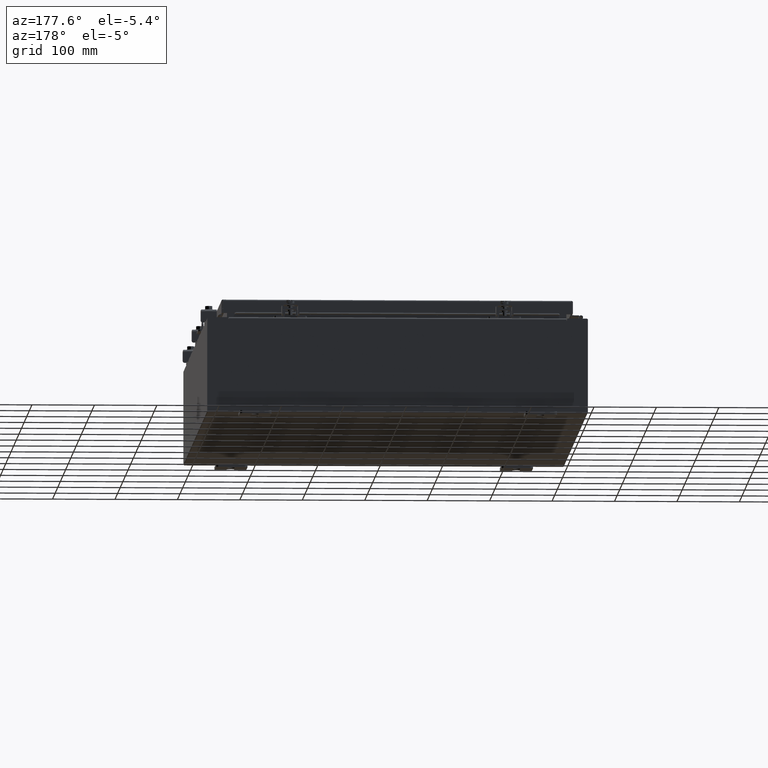
[diagram: clean part render]
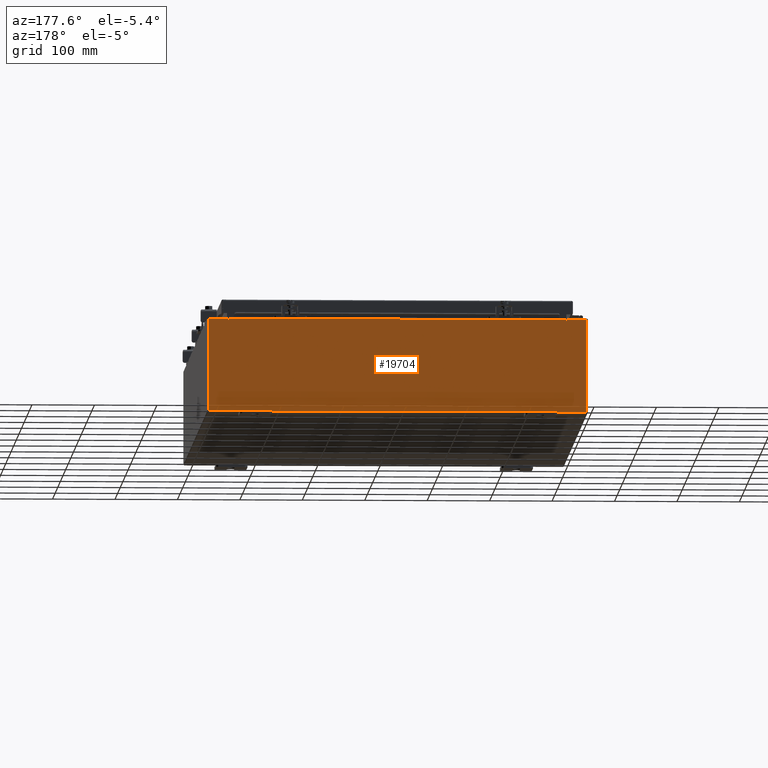
[diagram: same view with one face highlighted and labeled with its STEP entity id]
A machine part, auxiliary view. The second image highlights one B-rep face of the part: STEP entity #19704.
In plain terms, the highlighted planar face has unit normal (0, -1, 0).
Its self-contained STEP definition (entity closure, byte-faithful):
#745 = VERTEX_POINT ( 'NONE', #31396 ) ;
#3086 = LINE ( 'NONE', #41888, #19363 ) ;
#3201 = CARTESIAN_POINT ( 'NONE',  ( 10.63720000000000400, 0.0000000000000000000, 0.0000000000000000000 ) ) ;
#3669 = DIRECTION ( 'NONE',  ( -0.0000000000000000000, 1.000000000000000000, -0.0000000000000000000 ) ) ;
#5238 = ORIENTED_EDGE ( 'NONE', *, *, #37754, .F. ) ;
#5656 = CARTESIAN_POINT ( 'NONE',  ( -10.63720000000000400, 1.024442997624098700E-016, 2.912300000000000600 ) ) ;
#6202 = DIRECTION ( 'NONE',  ( 0.0000000000000000000, 0.0000000000000000000, -1.000000000000000000 ) ) ;
#6717 = LINE ( 'NONE', #18109, #39661 ) ;
#7044 = CARTESIAN_POINT ( 'NONE',  ( -10.63720000000000400, 1.024442997624098700E-016, 2.912300000000000600 ) ) ;
#8687 = DIRECTION ( 'NONE',  ( 0.0000000000000000000, 0.0000000000000000000, -1.000000000000000000 ) ) ;
#9458 = ORIENTED_EDGE ( 'NONE', *, *, #38459, .F. ) ;
#10422 = DIRECTION ( 'NONE',  ( 1.000000000000000000, 0.0000000000000000000, 0.0000000000000000000 ) ) ;
#10747 = ORIENTED_EDGE ( 'NONE', *, *, #37763, .F. ) ;
#12875 = CARTESIAN_POINT ( 'NONE',  ( -11.92530000000000000, 0.0000000000000000000, 2.925300000000000500 ) ) ;
#13237 = CARTESIAN_POINT ( 'NONE',  ( -10.67455000000000200, -0.0000000000000000000, 0.0000000000000000000 ) ) ;
#13377 = ORIENTED_EDGE ( 'NONE', *, *, #38902, .T. ) ;
#13383 = CARTESIAN_POINT ( 'NONE',  ( -10.67455000000000200, 0.0000000000000000000, 2.874950000000000600 ) ) ;
#14299 = LINE ( 'NONE', #12875, #31813 ) ;
#15774 = VERTEX_POINT ( 'NONE', #25359 ) ;
#15999 = DIRECTION ( 'NONE',  ( 0.0000000000000000000, 0.0000000000000000000, 1.000000000000000000 ) ) ;
#16084 = ORIENTED_EDGE ( 'NONE', *, *, #34783, .T. ) ;
#16263 = CARTESIAN_POINT ( 'NONE',  ( 10.65587500000000200, 0.0000000000000000000, 2.874950000000000600 ) ) ;
#16850 = LINE ( 'NONE', #3201, #34442 ) ;
#17249 = VERTEX_POINT ( 'NONE', #28926 ) ;
#17362 = CARTESIAN_POINT ( 'NONE',  ( 10.67455000000000200, 0.0000000000000000000, 2.925300000000000500 ) ) ;
#17664 = CARTESIAN_POINT ( 'NONE',  ( 11.92530000000000000, 0.0000000000000000000, 2.925300000000000500 ) ) ;
#17914 = VERTEX_POINT ( 'NONE', #5656 ) ;
#18109 = CARTESIAN_POINT ( 'NONE',  ( 11.92530000000000000, 0.0000000000000000000, 2.925300000000000500 ) ) ;
#18650 = ORIENTED_EDGE ( 'NONE', *, *, #38292, .T. ) ;
#18944 = EDGE_LOOP ( 'NONE', ( #5238, #10747, #27240, #18650, #9458, #24601, #35898, #27202, #34533, #38397, #13377, #16084 ) ) ;
#18966 = FACE_OUTER_BOUND ( 'NONE', #18944, .T. ) ;
#19010 = VERTEX_POINT ( 'NONE', #36811 ) ;
#19221 = DIRECTION ( 'NONE',  ( -0.0000000000000000000, -0.0000000000000000000, 1.000000000000000000 ) ) ;
#19331 = VERTEX_POINT ( 'NONE', #36443 ) ;
#19363 = VECTOR ( 'NONE', #38513, 39.37007874015748100 ) ;
#19563 = DIRECTION ( 'NONE',  ( 0.0000000000000000000, 0.0000000000000000000, -1.000000000000000000 ) ) ;
#19704 = ADVANCED_FACE ( 'NONE', ( #18966 ), #37625, .F. ) ;
#19737 = DIRECTION ( 'NONE',  ( 0.0000000000000000000, 0.0000000000000000000, 1.000000000000000000 ) ) ;
#20930 = VECTOR ( 'NONE', #31703, 39.37007874015748100 ) ;
#21329 = VECTOR ( 'NONE', #6202, 39.37007874015748100 ) ;
#21370 = LINE ( 'NONE', #13237, #38041 ) ;
#21719 = VERTEX_POINT ( 'NONE', #39302 ) ;
#21947 = LINE ( 'NONE', #35027, #20930 ) ;
#22627 = CARTESIAN_POINT ( 'NONE',  ( 0.0000000000000000000, 0.0000000000000000000, 0.0000000000000000000 ) ) ;
#23162 = CARTESIAN_POINT ( 'NONE',  ( -10.65587500000000200, 0.0000000000000000000, 2.874950000000000600 ) ) ;
#24064 = LINE ( 'NONE', #7044, #32932 ) ;
#24180 = CARTESIAN_POINT ( 'NONE',  ( 11.92530000000000000, 0.0000000000000000000, -2.925299999999999600 ) ) ;
#24601 = ORIENTED_EDGE ( 'NONE', *, *, #38468, .F. ) ;
#25134 = CARTESIAN_POINT ( 'NONE',  ( -11.92530000000000000, 0.0000000000000000000, -2.925299999999999600 ) ) ;
#25359 = CARTESIAN_POINT ( 'NONE',  ( -11.92530000000000000, 0.0000000000000000000, 2.925300000000000500 ) ) ;
#25634 = CIRCLE ( 'NONE', #35888, 0.01867499999999949400 ) ;
#26541 = DIRECTION ( 'NONE',  ( 0.0000000000000000000, 0.0000000000000000000, -1.000000000000000000 ) ) ;
#26794 = DIRECTION ( 'NONE',  ( -4.340572780400004900E-014, 0.0000000000000000000, -1.000000000000000000 ) ) ;
#26936 = CARTESIAN_POINT ( 'NONE',  ( 10.67454999999987700, -0.0000000000000000000, -4.633366117301834200E-013 ) ) ;
#27002 = VERTEX_POINT ( 'NONE', #17664 ) ;
#27202 = ORIENTED_EDGE ( 'NONE', *, *, #34915, .T. ) ;
#27222 = VERTEX_POINT ( 'NONE', #25134 ) ;
#27240 = ORIENTED_EDGE ( 'NONE', *, *, #38154, .F. ) ;
#27914 = AXIS2_PLACEMENT_3D ( 'NONE', #22627, #32418, #38905 ) ;
#28807 = VERTEX_POINT ( 'NONE', #24180 ) ;
#28926 = CARTESIAN_POINT ( 'NONE',  ( 10.63720000000000400, 0.0000000000000000000, 2.912300000000000600 ) ) ;
#29225 = CIRCLE ( 'NONE', #38405, 0.01867499999999949400 ) ;
#29229 = DIRECTION ( 'NONE',  ( 1.000000000000000000, 0.0000000000000000000, 0.0000000000000000000 ) ) ;
#31396 = CARTESIAN_POINT ( 'NONE',  ( 10.67455000000000200, 0.0000000000000000000, 2.874950000000000600 ) ) ;
#31703 = DIRECTION ( 'NONE',  ( -1.000000000000000000, -0.0000000000000000000, -0.0000000000000000000 ) ) ;
#31813 = VECTOR ( 'NONE', #29229, 39.37007874015748100 ) ;
#32418 = DIRECTION ( 'NONE',  ( 0.0000000000000000000, -1.000000000000000000, 0.0000000000000000000 ) ) ;
#32423 = CARTESIAN_POINT ( 'NONE',  ( -11.92530000000000000, 0.0000000000000000000, 2.925300000000000500 ) ) ;
#32932 = VECTOR ( 'NONE', #10422, 39.37007874015748100 ) ;
#33369 = VECTOR ( 'NONE', #19221, 39.37007874015748100 ) ;
#33886 = VERTEX_POINT ( 'NONE', #17362 ) ;
#34396 = LINE ( 'NONE', #32423, #33369 ) ;
#34442 = VECTOR ( 'NONE', #15999, 39.37007874015748100 ) ;
#34533 = ORIENTED_EDGE ( 'NONE', *, *, #38730, .T. ) ;
#34783 = EDGE_CURVE ( 'NONE', #15774, #21719, #3086, .T. ) ;
#34915 = EDGE_CURVE ( 'NONE', #33886, #27002, #14299, .T. ) ;
#35027 = CARTESIAN_POINT ( 'NONE',  ( -11.92530000000000000, 0.0000000000000000000, -2.925299999999999600 ) ) ;
#35888 = AXIS2_PLACEMENT_3D ( 'NONE', #16263, #39419, #19563 ) ;
#35898 = ORIENTED_EDGE ( 'NONE', *, *, #38599, .F. ) ;
#36443 = CARTESIAN_POINT ( 'NONE',  ( -10.63720000000000400, -0.0000000000000000000, 2.874950000000000600 ) ) ;
#36811 = CARTESIAN_POINT ( 'NONE',  ( 10.63720000000000400, 0.0000000000000000000, 2.874950000000000600 ) ) ;
#37058 = VECTOR ( 'NONE', #26794, 39.37007874015748100 ) ;
#37625 = PLANE ( 'NONE',  #27914 ) ;
#37754 = EDGE_CURVE ( 'NONE', #42032, #21719, #21370, .T. ) ;
#37763 = EDGE_CURVE ( 'NONE', #19331, #42032, #29225, .T. ) ;
#38041 = VECTOR ( 'NONE', #19737, 39.37007874015748100 ) ;
#38154 = EDGE_CURVE ( 'NONE', #17914, #19331, #39032, .T. ) ;
#38292 = EDGE_CURVE ( 'NONE', #17914, #17249, #24064, .T. ) ;
#38397 = ORIENTED_EDGE ( 'NONE', *, *, #38781, .T. ) ;
#38405 = AXIS2_PLACEMENT_3D ( 'NONE', #23162, #3669, #26541 ) ;
#38459 = EDGE_CURVE ( 'NONE', #19010, #17249, #16850, .T. ) ;
#38468 = EDGE_CURVE ( 'NONE', #745, #19010, #25634, .T. ) ;
#38513 = DIRECTION ( 'NONE',  ( 1.000000000000000000, 0.0000000000000000000, 0.0000000000000000000 ) ) ;
#38599 = EDGE_CURVE ( 'NONE', #33886, #745, #39164, .T. ) ;
#38730 = EDGE_CURVE ( 'NONE', #27002, #28807, #6717, .T. ) ;
#38781 = EDGE_CURVE ( 'NONE', #28807, #27222, #21947, .T. ) ;
#38902 = EDGE_CURVE ( 'NONE', #27222, #15774, #34396, .T. ) ;
#38905 = DIRECTION ( 'NONE',  ( 0.0000000000000000000, -0.0000000000000000000, -1.000000000000000000 ) ) ;
#38992 = CARTESIAN_POINT ( 'NONE',  ( -10.63720000000000400, -0.0000000000000000000, 0.0000000000000000000 ) ) ;
#39032 = LINE ( 'NONE', #38992, #21329 ) ;
#39164 = LINE ( 'NONE', #26936, #37058 ) ;
#39302 = CARTESIAN_POINT ( 'NONE',  ( -10.67455000000000200, 0.0000000000000000000, 2.925300000000000500 ) ) ;
#39419 = DIRECTION ( 'NONE',  ( -0.0000000000000000000, 1.000000000000000000, -0.0000000000000000000 ) ) ;
#39661 = VECTOR ( 'NONE', #8687, 39.37007874015748100 ) ;
#41888 = CARTESIAN_POINT ( 'NONE',  ( -11.92530000000000000, 0.0000000000000000000, 2.925300000000000500 ) ) ;
#42032 = VERTEX_POINT ( 'NONE', #13383 ) ;